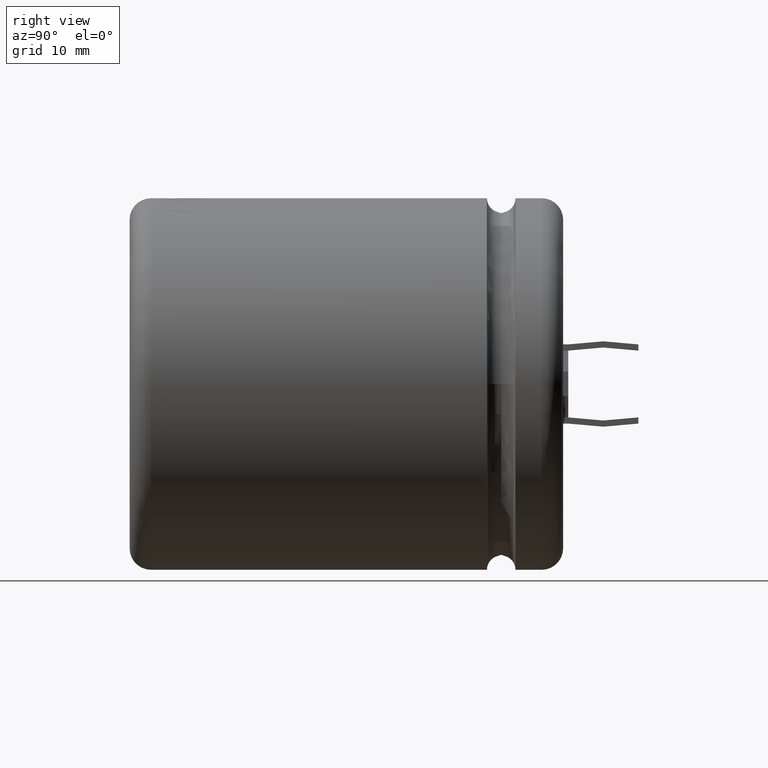
[diagram: clean part render]
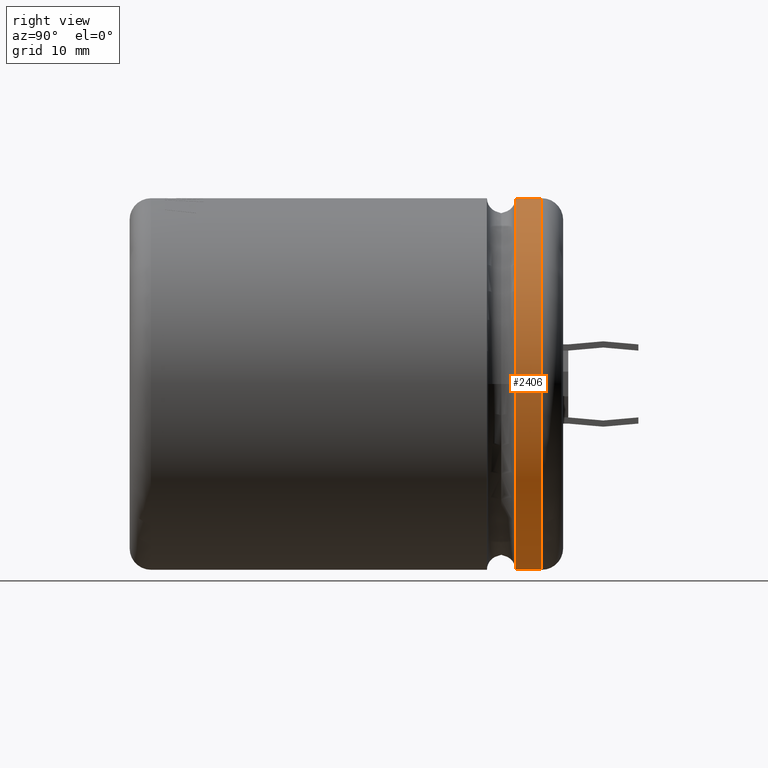
[diagram: same view with one face highlighted and labeled with its STEP entity id]
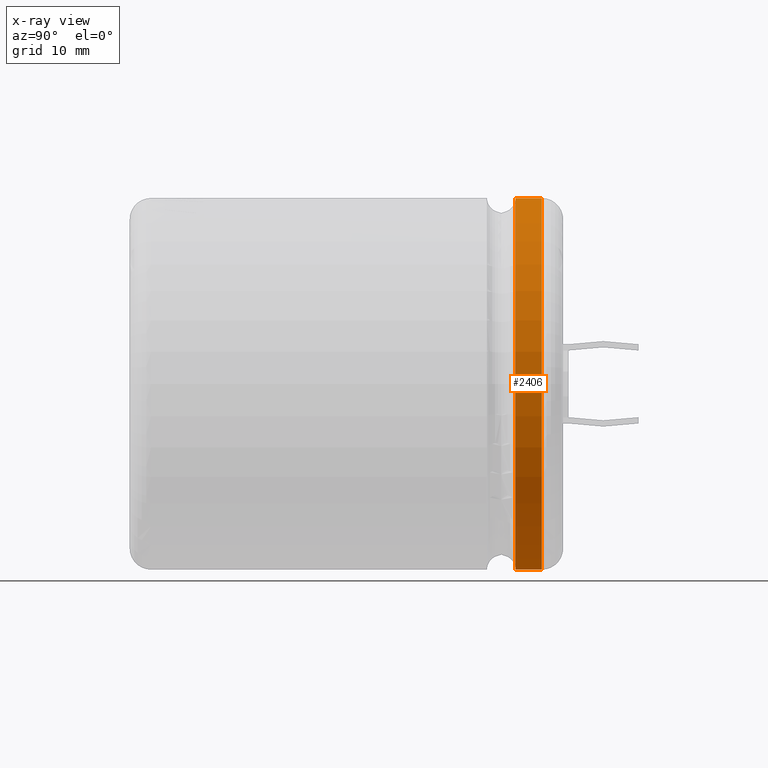
[diagram: x-ray of the same camera — body ghosted, the highlighted face saturated]
A machine part, right view. The second image highlights one B-rep face of the part: STEP entity #2406.
The next image is the same camera in x-ray: the body ghosted, the highlighted face saturated — about 0% of this face is hidden behind the body in this view.
In plain terms, the highlighted cylindrical surface (partial cylindrical patch) has radius 18 mm, axis along (-0, -1, -0).
Its self-contained STEP definition (entity closure, byte-faithful):
#139 = EDGE_CURVE ( 'NONE', #2804, #1575, #2580, .T. ) ;
#148 = ORIENTED_EDGE ( 'NONE', *, *, #2705, .T. ) ;
#231 = CYLINDRICAL_SURFACE ( 'NONE', #981, 18.00000000000000000 ) ;
#237 = CARTESIAN_POINT ( 'NONE',  ( 1.693203091659987300E-016, 37.38456000000000800, 0.0000000000000000000 ) ) ;
#445 = ORIENTED_EDGE ( 'NONE', *, *, #3516, .T. ) ;
#547 = CARTESIAN_POINT ( 'NONE',  ( 0.0000000000000000000, 42.00000000000000000, -18.00000000000000000 ) ) ;
#807 = AXIS2_PLACEMENT_3D ( 'NONE', #237, #4772, #3217 ) ;
#981 = AXIS2_PLACEMENT_3D ( 'NONE', #4038, #1491, #2929 ) ;
#1174 = CARTESIAN_POINT ( 'NONE',  ( 0.0000000000000000000, 39.92640000000000100, -18.00000000000000000 ) ) ;
#1237 = AXIS2_PLACEMENT_3D ( 'NONE', #3763, #2401, #3897 ) ;
#1303 = CARTESIAN_POINT ( 'NONE',  ( 1.693203091659987300E-016, 37.38456000000000800, 0.0000000000000000000 ) ) ;
#1315 = VECTOR ( 'NONE', #3550, 1000.000000000000000 ) ;
#1436 = ORIENTED_EDGE ( 'NONE', *, *, #1635, .T. ) ;
#1491 = DIRECTION ( 'NONE',  ( -0.0000000000000000000, -1.000000000000000000, -0.0000000000000000000 ) ) ;
#1545 = EDGE_LOOP ( 'NONE', ( #148, #3935, #1436, #445, #1997 ) ) ;
#1575 = VERTEX_POINT ( 'NONE', #2513 ) ;
#1635 = EDGE_CURVE ( 'NONE', #1575, #4655, #3041, .T. ) ;
#1746 = CIRCLE ( 'NONE', #1237, 18.00000000000000000 ) ;
#1819 = CARTESIAN_POINT ( 'NONE',  ( 2.204364238465235000E-015, 39.92640000000000100, 18.00000000000000000 ) ) ;
#1970 = AXIS2_PLACEMENT_3D ( 'NONE', #1303, #2810, #2036 ) ;
#1997 = ORIENTED_EDGE ( 'NONE', *, *, #3040, .F. ) ;
#2036 = DIRECTION ( 'NONE',  ( -1.000000000000000000, 0.0000000000000000000, 0.0000000000000000000 ) ) ;
#2062 = VERTEX_POINT ( 'NONE', #1174 ) ;
#2401 = DIRECTION ( 'NONE',  ( -0.0000000000000000000, -1.000000000000000000, -0.0000000000000000000 ) ) ;
#2406 = ADVANCED_FACE ( 'NONE', ( #3632 ), #231, .T. ) ;
#2513 = CARTESIAN_POINT ( 'NONE',  ( 2.204364238465234600E-015, 37.38456000000000800, 18.00000000000000000 ) ) ;
#2580 = LINE ( 'NONE', #3606, #3446 ) ;
#2705 = EDGE_CURVE ( 'NONE', #2062, #2804, #1746, .T. ) ;
#2804 = VERTEX_POINT ( 'NONE', #1819 ) ;
#2810 = DIRECTION ( 'NONE',  ( 8.590547633431504700E-018, 1.000000000000000000, -0.0000000000000000000 ) ) ;
#2929 = DIRECTION ( 'NONE',  ( 0.0000000000000000000, 0.0000000000000000000, -1.000000000000000000 ) ) ;
#3040 = EDGE_CURVE ( 'NONE', #2062, #4238, #3782, .T. ) ;
#3041 = CIRCLE ( 'NONE', #807, 18.00000000000000000 ) ;
#3217 = DIRECTION ( 'NONE',  ( -1.000000000000000000, 0.0000000000000000000, 0.0000000000000000000 ) ) ;
#3446 = VECTOR ( 'NONE', #4745, 1000.000000000000000 ) ;
#3516 = EDGE_CURVE ( 'NONE', #4655, #4238, #4431, .T. ) ;
#3550 = DIRECTION ( 'NONE',  ( -0.0000000000000000000, -1.000000000000000000, -0.0000000000000000000 ) ) ;
#3606 = CARTESIAN_POINT ( 'NONE',  ( 2.204364238465235000E-015, 42.00000000000000000, 18.00000000000000000 ) ) ;
#3632 = FACE_OUTER_BOUND ( 'NONE', #1545, .T. ) ;
#3703 = CARTESIAN_POINT ( 'NONE',  ( 18.00000000000000000, 37.38456000000000800, 2.204364238465235400E-015 ) ) ;
#3763 = CARTESIAN_POINT ( 'NONE',  ( 0.0000000000000000000, 39.92640000000000100, 0.0000000000000000000 ) ) ;
#3782 = LINE ( 'NONE', #547, #1315 ) ;
#3897 = DIRECTION ( 'NONE',  ( 0.0000000000000000000, 0.0000000000000000000, 1.000000000000000000 ) ) ;
#3935 = ORIENTED_EDGE ( 'NONE', *, *, #139, .T. ) ;
#3991 = CARTESIAN_POINT ( 'NONE',  ( 0.0000000000000000000, 37.38456000000000800, -18.00000000000000000 ) ) ;
#4038 = CARTESIAN_POINT ( 'NONE',  ( 0.0000000000000000000, 42.00000000000000000, 0.0000000000000000000 ) ) ;
#4238 = VERTEX_POINT ( 'NONE', #3991 ) ;
#4431 = CIRCLE ( 'NONE', #1970, 18.00000000000000000 ) ;
#4655 = VERTEX_POINT ( 'NONE', #3703 ) ;
#4745 = DIRECTION ( 'NONE',  ( -0.0000000000000000000, -1.000000000000000000, -0.0000000000000000000 ) ) ;
#4772 = DIRECTION ( 'NONE',  ( 8.590547633431504700E-018, 1.000000000000000000, -0.0000000000000000000 ) ) ;